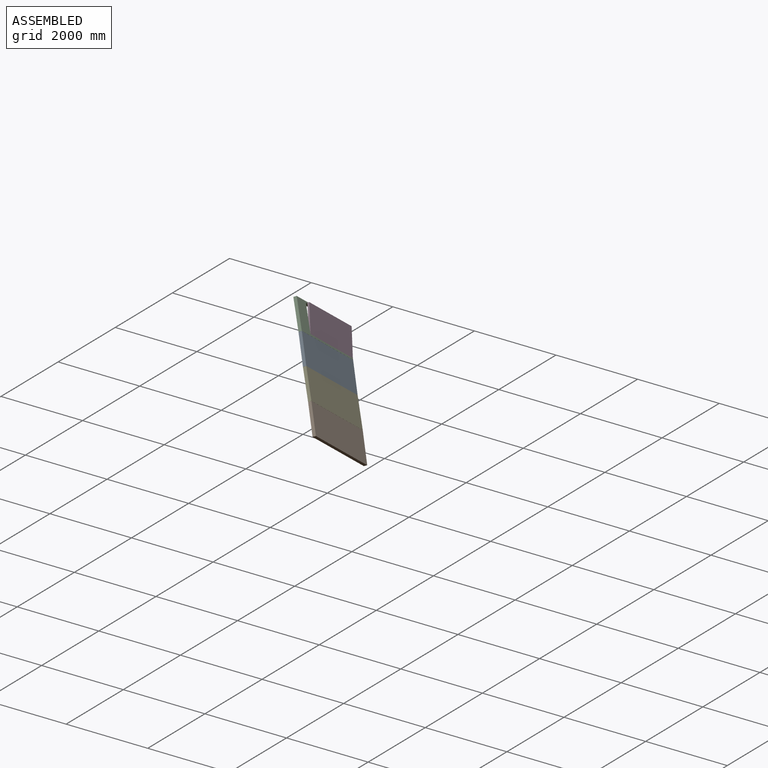
[diagram: assembled view]
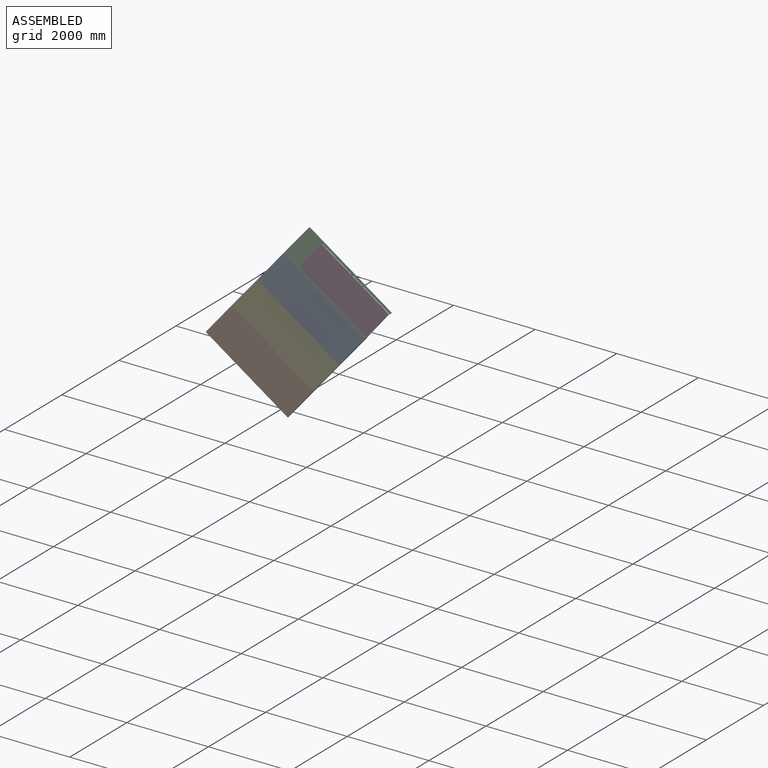
[diagram: assembled view, second angle]
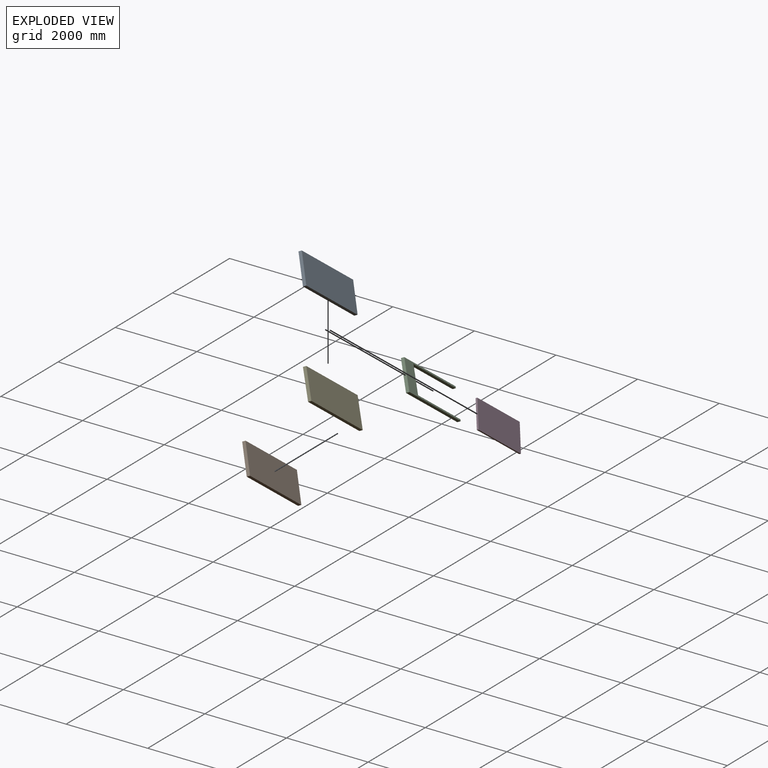
[diagram: exploded view]
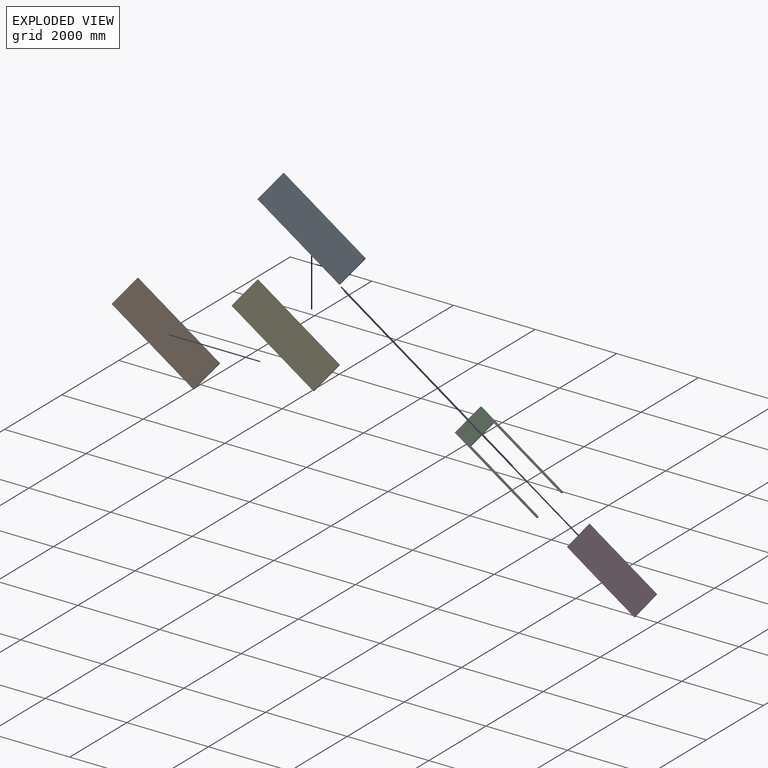
[diagram: exploded view, second angle]
ASSEMBLY  parts=5 mates=4
PART A: 6 faces, bbox 750x75x2400 mm
  f0: plane 750x75mm, normal (0,0,-1), area 56250mm2, adj f1,f3,f4,f5
  f1: plane 2400x75mm, normal (1,0,0), area 180000mm2, adj f0,f2,f4,f5
  f2: plane 750x75mm, normal (0,0,1), area 56250mm2, adj f1,f3,f4,f5
  f3: plane 2400x75mm, normal (-1,0,0), area 180000mm2, adj f0,f2,f4,f5
  f4: plane 2400x750mm, normal (0,-1,0), area 1800000mm2, adj f0,f1,f2,f3
  f5: plane 2400x750mm, normal (0,1,0), area 1800000mm2, adj f0,f1,f2,f3
PART B: same geometry as A
PART C: 10 faces, bbox 750x75x2400 mm
  f0: plane 1980x75mm, normal (-1,0,0), area 148500mm2, adj f1,f7,f8,f9
  f1: plane 75x40mm, normal (0,0,-1), area 3000mm2, adj f0,f2,f8,f9
  f2: plane 2400x75mm, normal (1,0,0), area 180000mm2, adj f1,f3,f8,f9
  f3: plane 750x75mm, normal (0,0,1), area 56250mm2, adj f2,f4,f8,f9
  f4: plane 2400x75mm, normal (-1,0,0), area 180000mm2, adj f3,f5,f8,f9
  f5: plane 75x40mm, normal (0,0,-1), area 3000mm2, adj f4,f6,f8,f9
  f6: plane 1980x75mm, normal (1,0,0), area 148500mm2, adj f5,f7,f8,f9
  f7: plane 670x75mm, normal (0,0,-1), area 50250mm2, adj f0,f6,f8,f9
  f8: plane 2400x750mm, normal (0,-1,0), area 473400mm2, adj f0,f1,f2,f3,f4,f5,f6,f7
  f9: plane 2400x750mm, normal (0,1,0), area 473400mm2, adj f0,f1,f2,f3,f4,f5,f6,f7
PART D: 6 faces, bbox 670x40x1980 mm
  f0: plane 1980x40mm, normal (-1,0,0), area 79200mm2, adj f1,f3,f4,f5
  f1: plane 670x40mm, normal (0,0,-1), area 26800mm2, adj f0,f2,f4,f5
  f2: plane 1980x40mm, normal (1,0,0), area 79200mm2, adj f1,f3,f4,f5
  f3: plane 670x40mm, normal (0,0,1), area 26800mm2, adj f0,f2,f4,f5
  f4: plane 1980x670mm, normal (0,-1,0), area 1326600mm2, adj f0,f1,f2,f3
  f5: plane 1980x670mm, normal (0,1,0), area 1326600mm2, adj f0,f1,f2,f3
PART E: same geometry as A
PLACE A rot(axis=(0.61,0.39,-0.7),78.4deg) t=(3253.7,2223.29,-629.32)mm
PLACE B rot(axis=(0.61,0.39,-0.7),78.4deg) t=(4007.09,1483.17,-1696.42)mm
PLACE C rot(axis=(0.61,0.38,-0.69),77.6deg) t=(2185.79,3601.19,620.75)mm
PLACE D rot(axis=(0.56,0.4,-0.72),82.1deg) t=(2255.64,3624.96,648.47)mm
PLACE E rot(axis=(0.61,0.38,-0.69),77.6deg) t=(3646.01,1859.58,-1155.25)mm
MATE revolute C.f1 <-> D.f1  axis (-0.04,0.81,-0.59) through (2547.86,3253.38,118.72)mm
MATE revolute B.f0 <-> E.f0  axis (-0.04,0.81,-0.59) through (3257.2,2468.98,-1006.03)mm
MATE revolute E.f0 <-> A.f0  axis (0.04,-0.81,0.59) through (2939.18,2861.08,-446.35)mm
MATE revolute C.f1 <-> A.f0  axis (-0.04,0.81,-0.59) through (2503.81,3209.09,61.06)mm
